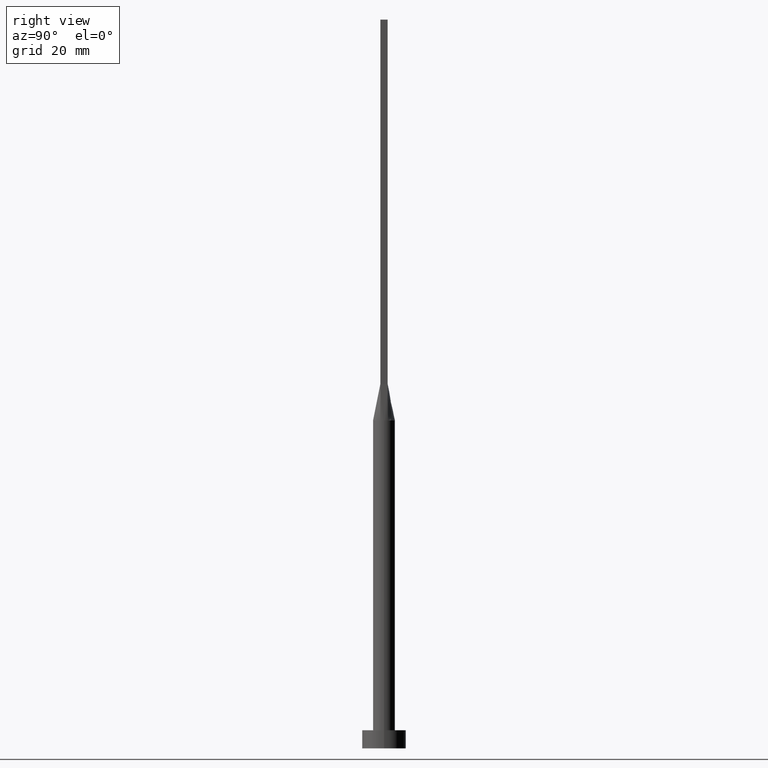
[diagram: clean part render]
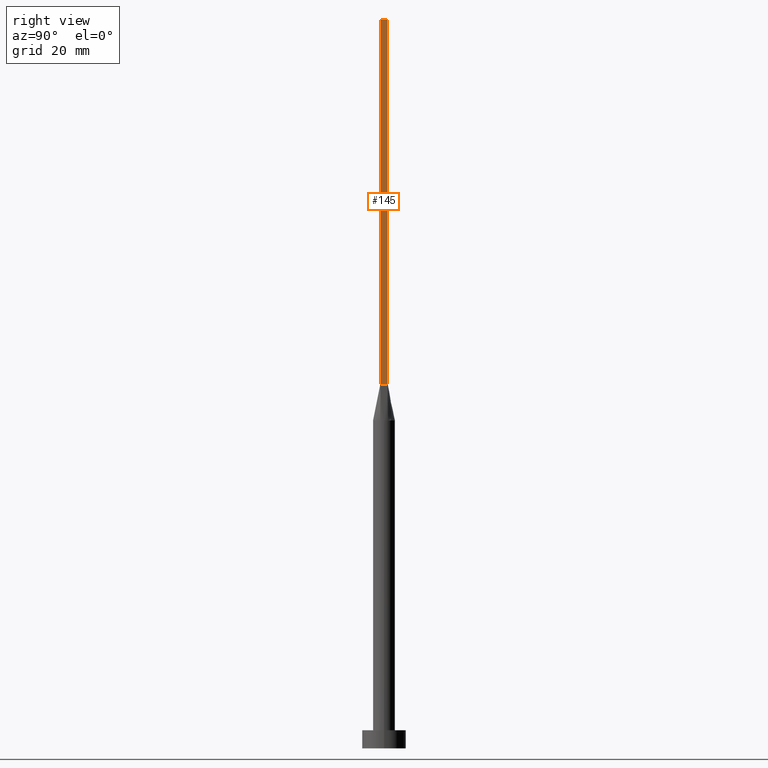
[diagram: same view with one face highlighted and labeled with its STEP entity id]
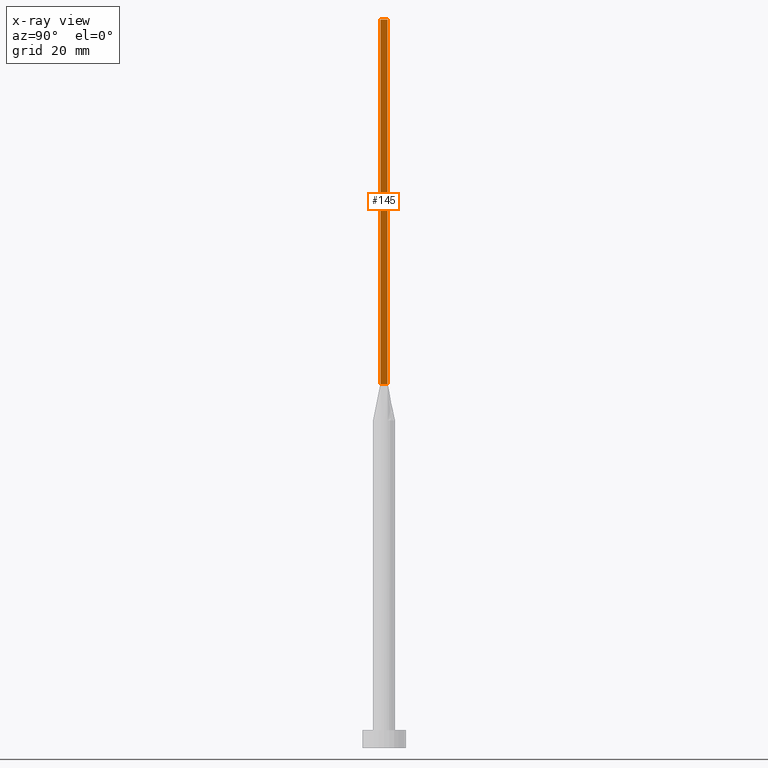
[diagram: x-ray of the same camera — body ghosted, the highlighted face saturated]
A machine part, right view. The second image highlights one B-rep face of the part: STEP entity #145.
The next image is the same camera in x-ray: the body ghosted, the highlighted face saturated — about 0% of this face is hidden behind the body in this view.
In plain terms, the highlighted planar face has unit normal (-1, -0, 0).
Its self-contained STEP definition (entity closure, byte-faithful):
#19 = FACE_OUTER_BOUND ( 'NONE', #534, .T. ) ;
#45 = CARTESIAN_POINT ( 'NONE',  ( 2.750000000000000000, -0.9999999999999997780, 200.0000000000000000 ) ) ;
#49 = CARTESIAN_POINT ( 'NONE',  ( 2.749999999999999556, 1.000000000000000000, 200.0000000000000000 ) ) ;
#67 = VECTOR ( 'NONE', #338, 1000.000000000000000 ) ;
#71 = LINE ( 'NONE', #244, #67 ) ;
#81 = LINE ( 'NONE', #335, #308 ) ;
#83 = CARTESIAN_POINT ( 'NONE',  ( 2.749999999999999556, 1.000000000000000000, 200.0000000000000000 ) ) ;
#84 = ORIENTED_EDGE ( 'NONE', *, *, #275, .T. ) ;
#126 = ORIENTED_EDGE ( 'NONE', *, *, #297, .F. ) ;
#136 = LINE ( 'NONE', #45, #467 ) ;
#145 = ADVANCED_FACE ( 'NONE', ( #19 ), #277, .F. ) ;
#163 = DIRECTION ( 'NONE',  ( -0.000000000000000000, -0.000000000000000000, -1.000000000000000000 ) ) ;
#175 = VERTEX_POINT ( 'NONE', #561 ) ;
#233 = CARTESIAN_POINT ( 'NONE',  ( 2.750000000000000000, -0.9999999999999997780, 200.0000000000000000 ) ) ;
#244 = CARTESIAN_POINT ( 'NONE',  ( 2.749999999999999556, 1.000000000000000000, 100.0000000000000000 ) ) ;
#271 = AXIS2_PLACEMENT_3D ( 'NONE', #233, #330, #455 ) ;
#275 = EDGE_CURVE ( 'NONE', #175, #552, #81, .T. ) ;
#277 = PLANE ( 'NONE',  #271 ) ;
#297 = EDGE_CURVE ( 'NONE', #402, #346, #427, .T. ) ;
#308 = VECTOR ( 'NONE', #163, 1000.000000000000000 ) ;
#316 = EDGE_CURVE ( 'NONE', #552, #346, #71, .T. ) ;
#330 = DIRECTION ( 'NONE',  ( -1.000000000000000000, -2.168404344971008868E-16, 0.000000000000000000 ) ) ;
#335 = CARTESIAN_POINT ( 'NONE',  ( 2.750000000000000000, -0.9999999999999997780, 200.0000000000000000 ) ) ;
#336 = VECTOR ( 'NONE', #378, 1000.000000000000000 ) ;
#338 = DIRECTION ( 'NONE',  ( -2.168404344971008868E-16, 1.000000000000000000, -0.000000000000000000 ) ) ;
#346 = VERTEX_POINT ( 'NONE', #543 ) ;
#373 = EDGE_CURVE ( 'NONE', #175, #402, #136, .T. ) ;
#378 = DIRECTION ( 'NONE',  ( -0.000000000000000000, -0.000000000000000000, -1.000000000000000000 ) ) ;
#380 = ORIENTED_EDGE ( 'NONE', *, *, #316, .T. ) ;
#402 = VERTEX_POINT ( 'NONE', #49 ) ;
#427 = LINE ( 'NONE', #83, #336 ) ;
#455 = DIRECTION ( 'NONE',  ( 2.168404344971008868E-16, -1.000000000000000000, 0.000000000000000000 ) ) ;
#462 = CARTESIAN_POINT ( 'NONE',  ( 2.750000000000000000, -0.9999999999999997780, 100.0000000000000000 ) ) ;
#467 = VECTOR ( 'NONE', #488, 1000.000000000000000 ) ;
#488 = DIRECTION ( 'NONE',  ( -2.168404344971008868E-16, 1.000000000000000000, 0.000000000000000000 ) ) ;
#534 = EDGE_LOOP ( 'NONE', ( #380, #126, #549, #84 ) ) ;
#543 = CARTESIAN_POINT ( 'NONE',  ( 2.749999999999999556, 1.000000000000000000, 100.0000000000000000 ) ) ;
#549 = ORIENTED_EDGE ( 'NONE', *, *, #373, .F. ) ;
#552 = VERTEX_POINT ( 'NONE', #462 ) ;
#561 = CARTESIAN_POINT ( 'NONE',  ( 2.750000000000000000, -0.9999999999999997780, 200.0000000000000000 ) ) ;